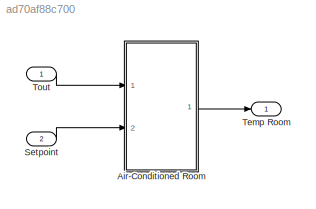
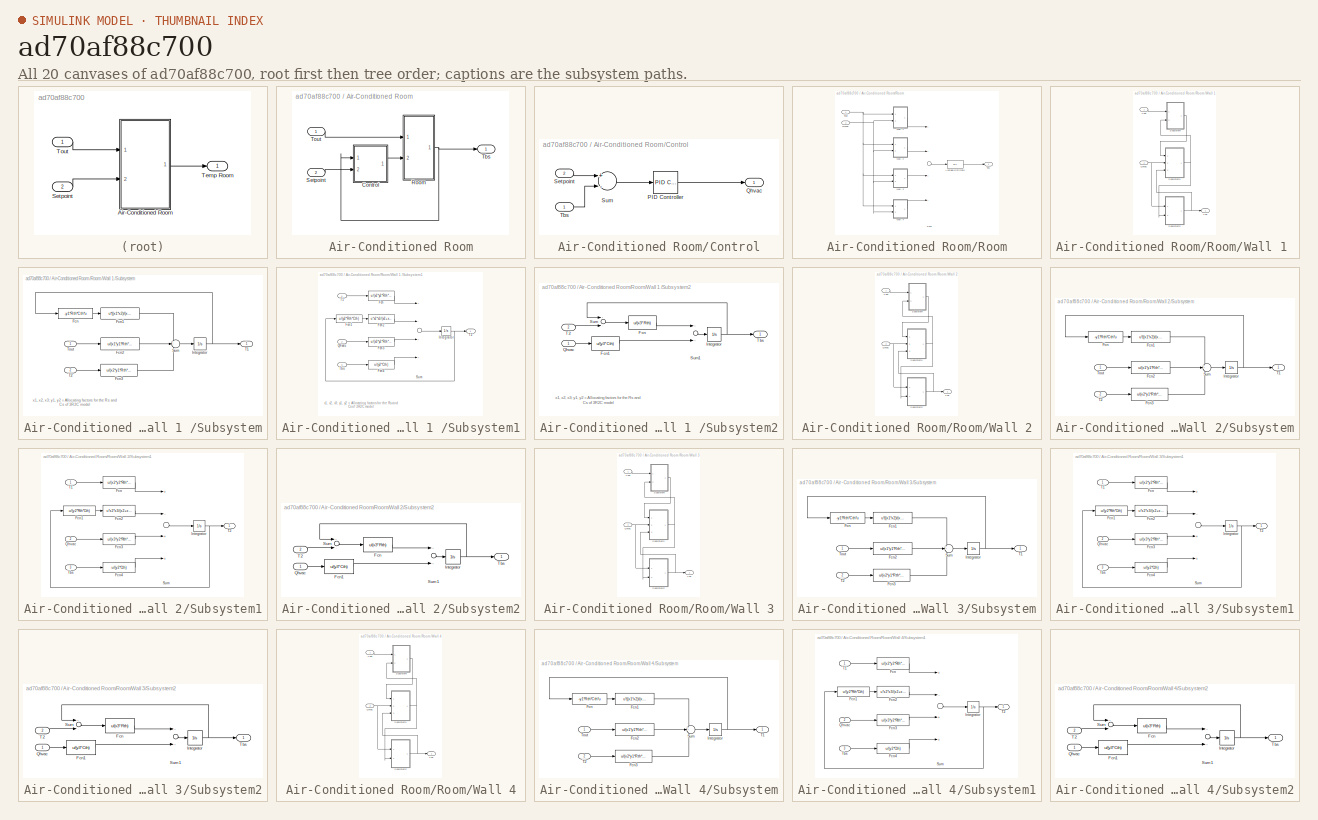
[diagram: thumbnail index - all 20 canvases of the model, root first then tree order]
MODEL slx_ad70af88c700
KIND model
CONFIG AbsTol = auto
CONFIG FixedStep = auto
CONFIG MaxStep = auto
CONFIG MinStep = auto
CONFIG RelTol = 1e-3
CONFIG SampleTimeConstraint = Unconstrained
CONFIG Solver = VariableStepAuto
CONFIG SolverMode = Auto
CONFIG SolverName = VariableStepAuto
CONFIG StartTime = 0.0
CONFIG StopTime = 10.0
BLOCK [SubSystem] Air-Conditioned Room
  Ports = [2, 1]
  RequestExecContextInheritance = off
  Variant = off
BLOCK [SubSystem] Air-Conditioned Room/Control
  Ports = [2, 1]
  RequestExecContextInheritance = off
  Variant = off
BLOCK [Reference] Air-Conditioned Room/Control/PID Controller  REF=simulink/Continuous/PID Controller
  Ports = [1, 1]
  SourceBlock = simulink/Continuous/PID Controller
  SourceType = PID 1dof
BLOCK [Outport] Air-Conditioned Room/Control/Qhvac 
  IconDisplay = Port number
BLOCK [Inport] Air-Conditioned Room/Control/Setpoint
  IconDisplay = Port number
  Port = 2
BLOCK [Sum] Air-Conditioned Room/Control/Sum
  InputSameDT = off
  Inputs = +-
  OutDataTypeStr = Inherit: Inherit via internal rule
  Ports = [2, 1]
  SaturateOnIntegerOverflow = off
BLOCK [Inport] Air-Conditioned Room/Control/Tbs 
  IconDisplay = Port number
BLOCK [SubSystem] Air-Conditioned Room/Room
  Ports = [2, 1]
  RequestExecContextInheritance = off
  Variant = off
BLOCK [Fcn] Air-Conditioned Room/Room/Average Estimate
  Expr = u/4
BLOCK [Inport] Air-Conditioned Room/Room/Qhvac
  IconDisplay = Port number
  Port = 2
BLOCK [Sum] Air-Conditioned Room/Room/Sum
  InputSameDT = off
  Inputs = ++++
  OutDataTypeStr = Inherit: Inherit via internal rule
  Ports = [4, 1]
  SaturateOnIntegerOverflow = off
BLOCK [Outport] Air-Conditioned Room/Room/Tbs
  IconDisplay = Port number
BLOCK [Inport] Air-Conditioned Room/Room/Tout
  IconDisplay = Port number
BLOCK [SubSystem] Air-Conditioned Room/Room/Wall 1 
  Ports = [2, 1]
  RequestExecContextInheritance = off
  Variant = off
BLOCK [Inport] Air-Conditioned Room/Room/Wall 1 /Qhvac
  IconDisplay = Port number
  Port = 2
BLOCK [SubSystem] Air-Conditioned Room/Room/Wall 1 /Subsystem
  Ports = [2, 1]
  RequestExecContextInheritance = off
  Variant = off
BLOCK [Fcn] Air-Conditioned Room/Room/Wall 1 /Subsystem/Fcn
  Expr = -y1*Rth*Cth*u
BLOCK [Fcn] Air-Conditioned Room/Room/Wall 1 /Subsystem/Fcn1
  Expr = u*((x1*x2)/(x1+x2))
BLOCK [Fcn] Air-Conditioned Room/Room/Wall 1 /Subsystem/Fcn2
  Expr = u/(x1*y1*Rth*Cth)
BLOCK [Fcn] Air-Conditioned Room/Room/Wall 1 /Subsystem/Fcn3
  Expr = u/(x2*y1*Rth*Cth)
BLOCK [Integrator] Air-Conditioned Room/Room/Wall 1 /Subsystem/Integrator
  Ports = [1, 1]
BLOCK [Sum] Air-Conditioned Room/Room/Wall 1 /Subsystem/Sum
  IconShape = round
  InputSameDT = off
  Inputs = 3
  OutDataTypeStr = Inherit: Inherit via internal rule
  Ports = [3, 1]
  SaturateOnIntegerOverflow = off
BLOCK [Outport] Air-Conditioned Room/Room/Wall 1 /Subsystem/T1
  IconDisplay = Port number
BLOCK [Inport] Air-Conditioned Room/Room/Wall 1 /Subsystem/T2
  IconDisplay = Port number
  Port = 2
BLOCK [Inport] Air-Conditioned Room/Room/Wall 1 /Subsystem/Tout
  IconDisplay = Port number
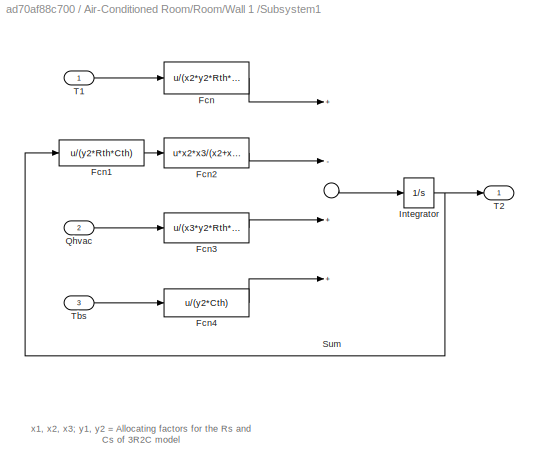
BLOCK [SubSystem] Air-Conditioned Room/Room/Wall 1 /Subsystem1
  Ports = [3, 1]
  RequestExecContextInheritance = off
  Variant = off
BLOCK [Fcn] Air-Conditioned Room/Room/Wall 1 /Subsystem1/Fcn
  Expr = u/(x2*y2*Rth*Cth)
BLOCK [Fcn] Air-Conditioned Room/Room/Wall 1 /Subsystem1/Fcn1
  Expr = u/(y2*Rth*Cth)
BLOCK [Fcn] Air-Conditioned Room/Room/Wall 1 /Subsystem1/Fcn2
  Expr = u*x2*x3/(x2+x3)
BLOCK [Fcn] Air-Conditioned Room/Room/Wall 1 /Subsystem1/Fcn3
  Expr = u/(x3*y2*Rth*Cth)
BLOCK [Fcn] Air-Conditioned Room/Room/Wall 1 /Subsystem1/Fcn4
  Expr = u/(y2*Cth)
BLOCK [Integrator] Air-Conditioned Room/Room/Wall 1 /Subsystem1/Integrator
  Ports = [1, 1]
BLOCK [Inport] Air-Conditioned Room/Room/Wall 1 /Subsystem1/Qhvac
  IconDisplay = Port number
  Port = 2
BLOCK [Sum] Air-Conditioned Room/Room/Wall 1 /Subsystem1/Sum
  InputSameDT = off
  Inputs = +-++
  OutDataTypeStr = Inherit: Inherit via internal rule
  Ports = [4, 1]
  RndMeth = Round
  SaturateOnIntegerOverflow = off
BLOCK [Inport] Air-Conditioned Room/Room/Wall 1 /Subsystem1/T1 
  IconDisplay = Port number
BLOCK [Outport] Air-Conditioned Room/Room/Wall 1 /Subsystem1/T2 
  IconDisplay = Port number
BLOCK [Inport] Air-Conditioned Room/Room/Wall 1 /Subsystem1/Tbs
  IconDisplay = Port number
  Port = 3
BLOCK [SubSystem] Air-Conditioned Room/Room/Wall 1 /Subsystem2
  Ports = [2, 1]
  RequestExecContextInheritance = off
  Variant = off
BLOCK [Fcn] Air-Conditioned Room/Room/Wall 1 /Subsystem2/Fcn
  Expr = u/(x3*Rth)
BLOCK [Fcn] Air-Conditioned Room/Room/Wall 1 /Subsystem2/Fcn1
  Expr = u/(y3*Cth)
BLOCK [Integrator] Air-Conditioned Room/Room/Wall 1 /Subsystem2/Integrator
  Ports = [1, 1]
BLOCK [Inport] Air-Conditioned Room/Room/Wall 1 /Subsystem2/Qhvac 
  IconDisplay = Port number
BLOCK [Sum] Air-Conditioned Room/Room/Wall 1 /Subsystem2/Sum
  InputSameDT = off
  Inputs = +-
  OutDataTypeStr = Inherit: Inherit via internal rule
  Ports = [2, 1]
  SaturateOnIntegerOverflow = off
BLOCK [Sum] Air-Conditioned Room/Room/Wall 1 /Subsystem2/Sum1
  InputSameDT = off
  OutDataTypeStr = Inherit: Inherit via internal rule
  Ports = [2, 1]
  SaturateOnIntegerOverflow = off
BLOCK [Inport] Air-Conditioned Room/Room/Wall 1 /Subsystem2/T2 
  IconDisplay = Port number
  Port = 2
BLOCK [Outport] Air-Conditioned Room/Room/Wall 1 /Subsystem2/Tbs 
  IconDisplay = Port number
BLOCK [Outport] Air-Conditioned Room/Room/Wall 1 /Tbs 
  IconDisplay = Port number
BLOCK [Inport] Air-Conditioned Room/Room/Wall 1 /Tout
  IconDisplay = Port number
BLOCK [SubSystem] Air-Conditioned Room/Room/Wall 2
  Ports = [2, 1]
  RequestExecContextInheritance = off
  Variant = off
BLOCK [Inport] Air-Conditioned Room/Room/Wall 2/Qhvac
  IconDisplay = Port number
  Port = 2
BLOCK [SubSystem] Air-Conditioned Room/Room/Wall 2/Subsystem
  Ports = [2, 1]
  RequestExecContextInheritance = off
  Variant = off
BLOCK [Fcn] Air-Conditioned Room/Room/Wall 2/Subsystem/Fcn
  Expr = -y1*Rth*Cth*u
BLOCK [Fcn] Air-Conditioned Room/Room/Wall 2/Subsystem/Fcn1
  Expr = u*((x1*x2)/(x1+x2))
BLOCK [Fcn] Air-Conditioned Room/Room/Wall 2/Subsystem/Fcn2
  Expr = u/(x1*y1*Rth*Cth)
BLOCK [Fcn] Air-Conditioned Room/Room/Wall 2/Subsystem/Fcn3
  Expr = u/(x2*y1*Rth*Cth)
BLOCK [Integrator] Air-Conditioned Room/Room/Wall 2/Subsystem/Integrator
  Ports = [1, 1]
BLOCK [Sum] Air-Conditioned Room/Room/Wall 2/Subsystem/Sum
  IconShape = round
  InputSameDT = off
  Inputs = 3
  OutDataTypeStr = Inherit: Inherit via internal rule
  Ports = [3, 1]
  SaturateOnIntegerOverflow = off
BLOCK [Outport] Air-Conditioned Room/Room/Wall 2/Subsystem/T1
  IconDisplay = Port number
BLOCK [Inport] Air-Conditioned Room/Room/Wall 2/Subsystem/T2
  IconDisplay = Port number
  Port = 2
BLOCK [Inport] Air-Conditioned Room/Room/Wall 2/Subsystem/Tout
  IconDisplay = Port number
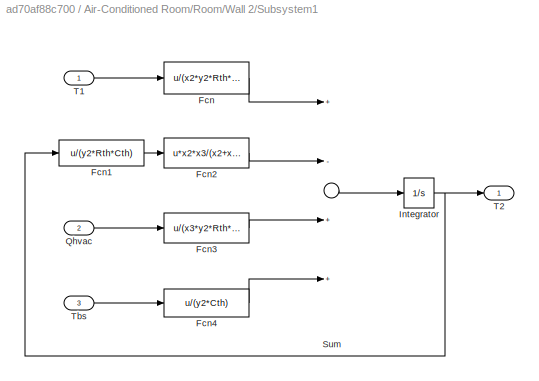
BLOCK [SubSystem] Air-Conditioned Room/Room/Wall 2/Subsystem1
  Ports = [3, 1]
  RequestExecContextInheritance = off
  Variant = off
BLOCK [Fcn] Air-Conditioned Room/Room/Wall 2/Subsystem1/Fcn
  Expr = u/(x2*y2*Rth*Cth)
BLOCK [Fcn] Air-Conditioned Room/Room/Wall 2/Subsystem1/Fcn1
  Expr = u/(y2*Rth*Cth)
BLOCK [Fcn] Air-Conditioned Room/Room/Wall 2/Subsystem1/Fcn2
  Expr = u*x2*x3/(x2+x3)
BLOCK [Fcn] Air-Conditioned Room/Room/Wall 2/Subsystem1/Fcn3
  Expr = u/(x3*y2*Rth*Cth)
BLOCK [Fcn] Air-Conditioned Room/Room/Wall 2/Subsystem1/Fcn4
  Expr = u/(y2*Cth)
BLOCK [Integrator] Air-Conditioned Room/Room/Wall 2/Subsystem1/Integrator
  Ports = [1, 1]
BLOCK [Inport] Air-Conditioned Room/Room/Wall 2/Subsystem1/Qhvac
  IconDisplay = Port number
  Port = 2
BLOCK [Sum] Air-Conditioned Room/Room/Wall 2/Subsystem1/Sum
  InputSameDT = off
  Inputs = +-++
  OutDataTypeStr = Inherit: Inherit via internal rule
  Ports = [4, 1]
  RndMeth = Round
  SaturateOnIntegerOverflow = off
BLOCK [Inport] Air-Conditioned Room/Room/Wall 2/Subsystem1/T1 
  IconDisplay = Port number
BLOCK [Outport] Air-Conditioned Room/Room/Wall 2/Subsystem1/T2 
  IconDisplay = Port number
BLOCK [Inport] Air-Conditioned Room/Room/Wall 2/Subsystem1/Tbs
  IconDisplay = Port number
  Port = 3
BLOCK [SubSystem] Air-Conditioned Room/Room/Wall 2/Subsystem2
  Ports = [2, 1]
  RequestExecContextInheritance = off
  Variant = off
BLOCK [Fcn] Air-Conditioned Room/Room/Wall 2/Subsystem2/Fcn
  Expr = u/(x3*Rth)
BLOCK [Fcn] Air-Conditioned Room/Room/Wall 2/Subsystem2/Fcn1
  Expr = u/(y3*Cth)
BLOCK [Integrator] Air-Conditioned Room/Room/Wall 2/Subsystem2/Integrator
  Ports = [1, 1]
BLOCK [Inport] Air-Conditioned Room/Room/Wall 2/Subsystem2/Qhvac 
  IconDisplay = Port number
BLOCK [Sum] Air-Conditioned Room/Room/Wall 2/Subsystem2/Sum
  InputSameDT = off
  Inputs = +-
  OutDataTypeStr = Inherit: Inherit via internal rule
  Ports = [2, 1]
  SaturateOnIntegerOverflow = off
BLOCK [Sum] Air-Conditioned Room/Room/Wall 2/Subsystem2/Sum1
  InputSameDT = off
  OutDataTypeStr = Inherit: Inherit via internal rule
  Ports = [2, 1]
  SaturateOnIntegerOverflow = off
BLOCK [Inport] Air-Conditioned Room/Room/Wall 2/Subsystem2/T2 
  IconDisplay = Port number
  Port = 2
BLOCK [Outport] Air-Conditioned Room/Room/Wall 2/Subsystem2/Tbs 
  IconDisplay = Port number
BLOCK [Outport] Air-Conditioned Room/Room/Wall 2/Tbs 
  IconDisplay = Port number
BLOCK [Inport] Air-Conditioned Room/Room/Wall 2/Tout
  IconDisplay = Port number
BLOCK [SubSystem] Air-Conditioned Room/Room/Wall 3
  Ports = [2, 1]
  RequestExecContextInheritance = off
  Variant = off
BLOCK [Inport] Air-Conditioned Room/Room/Wall 3/Qhvac
  IconDisplay = Port number
  Port = 2
BLOCK [SubSystem] Air-Conditioned Room/Room/Wall 3/Subsystem
  Ports = [2, 1]
  RequestExecContextInheritance = off
  Variant = off
BLOCK [Fcn] Air-Conditioned Room/Room/Wall 3/Subsystem/Fcn
  Expr = -y1*Rth*Cth*u
BLOCK [Fcn] Air-Conditioned Room/Room/Wall 3/Subsystem/Fcn1
  Expr = u*((x1*x2)/(x1+x2))
BLOCK [Fcn] Air-Conditioned Room/Room/Wall 3/Subsystem/Fcn2
  Expr = u/(x1*y1*Rth*Cth)
BLOCK [Fcn] Air-Conditioned Room/Room/Wall 3/Subsystem/Fcn3
  Expr = u/(x2*y1*Rth*Cth)
BLOCK [Integrator] Air-Conditioned Room/Room/Wall 3/Subsystem/Integrator
  Ports = [1, 1]
BLOCK [Sum] Air-Conditioned Room/Room/Wall 3/Subsystem/Sum
  IconShape = round
  InputSameDT = off
  Inputs = 3
  OutDataTypeStr = Inherit: Inherit via internal rule
  Ports = [3, 1]
  SaturateOnIntegerOverflow = off
BLOCK [Outport] Air-Conditioned Room/Room/Wall 3/Subsystem/T1
  IconDisplay = Port number
BLOCK [Inport] Air-Conditioned Room/Room/Wall 3/Subsystem/T2
  IconDisplay = Port number
  Port = 2
BLOCK [Inport] Air-Conditioned Room/Room/Wall 3/Subsystem/Tout
  IconDisplay = Port number
BLOCK [SubSystem] Air-Conditioned Room/Room/Wall 3/Subsystem1
  Ports = [3, 1]
  RequestExecContextInheritance = off
  Variant = off
BLOCK [Fcn] Air-Conditioned Room/Room/Wall 3/Subsystem1/Fcn
  Expr = u/(x2*y2*Rth*Cth)
BLOCK [Fcn] Air-Conditioned Room/Room/Wall 3/Subsystem1/Fcn1
  Expr = u/(y2*Rth*Cth)
BLOCK [Fcn] Air-Conditioned Room/Room/Wall 3/Subsystem1/Fcn2
  Expr = u*x2*x3/(x2+x3)
BLOCK [Fcn] Air-Conditioned Room/Room/Wall 3/Subsystem1/Fcn3
  Expr = u/(x3*y2*Rth*Cth)
BLOCK [Fcn] Air-Conditioned Room/Room/Wall 3/Subsystem1/Fcn4
  Expr = u/(y2*Cth)
BLOCK [Integrator] Air-Conditioned Room/Room/Wall 3/Subsystem1/Integrator
  Ports = [1, 1]
BLOCK [Inport] Air-Conditioned Room/Room/Wall 3/Subsystem1/Qhvac
  IconDisplay = Port number
  Port = 2
BLOCK [Sum] Air-Conditioned Room/Room/Wall 3/Subsystem1/Sum
  InputSameDT = off
  Inputs = +-++
  OutDataTypeStr = Inherit: Inherit via internal rule
  Ports = [4, 1]
  RndMeth = Round
  SaturateOnIntegerOverflow = off
BLOCK [Inport] Air-Conditioned Room/Room/Wall 3/Subsystem1/T1 
  IconDisplay = Port number
BLOCK [Outport] Air-Conditioned Room/Room/Wall 3/Subsystem1/T2 
  IconDisplay = Port number
BLOCK [Inport] Air-Conditioned Room/Room/Wall 3/Subsystem1/Tbs
  IconDisplay = Port number
  Port = 3
BLOCK [SubSystem] Air-Conditioned Room/Room/Wall 3/Subsystem2
  Ports = [2, 1]
  RequestExecContextInheritance = off
  Variant = off
BLOCK [Fcn] Air-Conditioned Room/Room/Wall 3/Subsystem2/Fcn
  Expr = u/(x3*Rth)
BLOCK [Fcn] Air-Conditioned Room/Room/Wall 3/Subsystem2/Fcn1
  Expr = u/(y3*Cth)
BLOCK [Integrator] Air-Conditioned Room/Room/Wall 3/Subsystem2/Integrator
  Ports = [1, 1]
BLOCK [Inport] Air-Conditioned Room/Room/Wall 3/Subsystem2/Qhvac 
  IconDisplay = Port number
BLOCK [Sum] Air-Conditioned Room/Room/Wall 3/Subsystem2/Sum
  InputSameDT = off
  Inputs = +-
  OutDataTypeStr = Inherit: Inherit via internal rule
  Ports = [2, 1]
  SaturateOnIntegerOverflow = off
BLOCK [Sum] Air-Conditioned Room/Room/Wall 3/Subsystem2/Sum1
  InputSameDT = off
  OutDataTypeStr = Inherit: Inherit via internal rule
  Ports = [2, 1]
  SaturateOnIntegerOverflow = off
BLOCK [Inport] Air-Conditioned Room/Room/Wall 3/Subsystem2/T2 
  IconDisplay = Port number
  Port = 2
BLOCK [Outport] Air-Conditioned Room/Room/Wall 3/Subsystem2/Tbs 
  IconDisplay = Port number
BLOCK [Outport] Air-Conditioned Room/Room/Wall 3/Tbs 
  IconDisplay = Port number
BLOCK [Inport] Air-Conditioned Room/Room/Wall 3/Tout
  IconDisplay = Port number
BLOCK [SubSystem] Air-Conditioned Room/Room/Wall 4
  Ports = [2, 1]
  RequestExecContextInheritance = off
  Variant = off
BLOCK [Inport] Air-Conditioned Room/Room/Wall 4/Qhvac
  IconDisplay = Port number
  Port = 2
BLOCK [SubSystem] Air-Conditioned Room/Room/Wall 4/Subsystem
  Ports = [2, 1]
  RequestExecContextInheritance = off
  Variant = off
BLOCK [Fcn] Air-Conditioned Room/Room/Wall 4/Subsystem/Fcn
  Expr = -y1*Rth*Cth*u
BLOCK [Fcn] Air-Conditioned Room/Room/Wall 4/Subsystem/Fcn1
  Expr = u*((x1*x2)/(x1+x2))
BLOCK [Fcn] Air-Conditioned Room/Room/Wall 4/Subsystem/Fcn2
  Expr = u/(x1*y1*Rth*Cth)
BLOCK [Fcn] Air-Conditioned Room/Room/Wall 4/Subsystem/Fcn3
  Expr = u/(x2*y1*Rth*Cth)
BLOCK [Integrator] Air-Conditioned Room/Room/Wall 4/Subsystem/Integrator
  Ports = [1, 1]
BLOCK [Sum] Air-Conditioned Room/Room/Wall 4/Subsystem/Sum
  IconShape = round
  InputSameDT = off
  Inputs = 3
  OutDataTypeStr = Inherit: Inherit via internal rule
  Ports = [3, 1]
  SaturateOnIntegerOverflow = off
BLOCK [Outport] Air-Conditioned Room/Room/Wall 4/Subsystem/T1
  IconDisplay = Port number
BLOCK [Inport] Air-Conditioned Room/Room/Wall 4/Subsystem/T2
  IconDisplay = Port number
  Port = 2
BLOCK [Inport] Air-Conditioned Room/Room/Wall 4/Subsystem/Tout
  IconDisplay = Port number
BLOCK [SubSystem] Air-Conditioned Room/Room/Wall 4/Subsystem1
  Ports = [3, 1]
  RequestExecContextInheritance = off
  Variant = off
BLOCK [Fcn] Air-Conditioned Room/Room/Wall 4/Subsystem1/Fcn
  Expr = u/(x2*y2*Rth*Cth)
BLOCK [Fcn] Air-Conditioned Room/Room/Wall 4/Subsystem1/Fcn1
  Expr = u/(y2*Rth*Cth)
BLOCK [Fcn] Air-Conditioned Room/Room/Wall 4/Subsystem1/Fcn2
  Expr = u*x2*x3/(x2+x3)
BLOCK [Fcn] Air-Conditioned Room/Room/Wall 4/Subsystem1/Fcn3
  Expr = u/(x3*y2*Rth*Cth)
BLOCK [Fcn] Air-Conditioned Room/Room/Wall 4/Subsystem1/Fcn4
  Expr = u/(y2*Cth)
BLOCK [Integrator] Air-Conditioned Room/Room/Wall 4/Subsystem1/Integrator
  Ports = [1, 1]
BLOCK [Inport] Air-Conditioned Room/Room/Wall 4/Subsystem1/Qhvac
  IconDisplay = Port number
  Port = 2
BLOCK [Sum] Air-Conditioned Room/Room/Wall 4/Subsystem1/Sum
  InputSameDT = off
  Inputs = +-++
  OutDataTypeStr = Inherit: Inherit via internal rule
  Ports = [4, 1]
  RndMeth = Round
  SaturateOnIntegerOverflow = off
BLOCK [Inport] Air-Conditioned Room/Room/Wall 4/Subsystem1/T1 
  IconDisplay = Port number
BLOCK [Outport] Air-Conditioned Room/Room/Wall 4/Subsystem1/T2 
  IconDisplay = Port number
BLOCK [Inport] Air-Conditioned Room/Room/Wall 4/Subsystem1/Tbs
  IconDisplay = Port number
  Port = 3
BLOCK [SubSystem] Air-Conditioned Room/Room/Wall 4/Subsystem2
  Ports = [2, 1]
  RequestExecContextInheritance = off
  Variant = off
BLOCK [Fcn] Air-Conditioned Room/Room/Wall 4/Subsystem2/Fcn
  Expr = u/(x3*Rth)
BLOCK [Fcn] Air-Conditioned Room/Room/Wall 4/Subsystem2/Fcn1
  Expr = u/(y3*Cth)
BLOCK [Integrator] Air-Conditioned Room/Room/Wall 4/Subsystem2/Integrator
  Ports = [1, 1]
BLOCK [Inport] Air-Conditioned Room/Room/Wall 4/Subsystem2/Qhvac 
  IconDisplay = Port number
BLOCK [Sum] Air-Conditioned Room/Room/Wall 4/Subsystem2/Sum
  InputSameDT = off
  Inputs = +-
  OutDataTypeStr = Inherit: Inherit via internal rule
  Ports = [2, 1]
  SaturateOnIntegerOverflow = off
BLOCK [Sum] Air-Conditioned Room/Room/Wall 4/Subsystem2/Sum1
  InputSameDT = off
  OutDataTypeStr = Inherit: Inherit via internal rule
  Ports = [2, 1]
  SaturateOnIntegerOverflow = off
BLOCK [Inport] Air-Conditioned Room/Room/Wall 4/Subsystem2/T2 
  IconDisplay = Port number
  Port = 2
BLOCK [Outport] Air-Conditioned Room/Room/Wall 4/Subsystem2/Tbs 
  IconDisplay = Port number
BLOCK [Outport] Air-Conditioned Room/Room/Wall 4/Tbs 
  IconDisplay = Port number
BLOCK [Inport] Air-Conditioned Room/Room/Wall 4/Tout
  IconDisplay = Port number
BLOCK [Inport] Air-Conditioned Room/Setpoint
  IconDisplay = Port number
  Port = 2
BLOCK [Outport] Air-Conditioned Room/Tbs
  IconDisplay = Port number
BLOCK [Inport] Air-Conditioned Room/Tout
  IconDisplay = Port number
BLOCK [Inport] Setpoint
  IconDisplay = Port number
  Port = 2
BLOCK [Outport] Temp Room
  IconDisplay = Port number
BLOCK [Inport] Tout
  IconDisplay = Port number
ANNOTATION Air-Conditioned Room/Room/Wall 1 /Subsystem: x1, x2, x3; y1, y2 = Allocating factors for the Rs and Cs of 3R2C model
ANNOTATION Air-Conditioned Room/Room/Wall 1 /Subsystem1: x1, x2, x3; y1, y2 = Allocating factors for the Rs and Cs of 3R2C model
ANNOTATION Air-Conditioned Room/Room/Wall 1 /Subsystem2: x1, x2, x3; y1, y2 = Allocating factors for the Rs and Cs of 3R2C model
LINE Air-Conditioned Room/Control/PID Controller:1 -> Air-Conditioned Room/Control/Qhvac :1
LINE Air-Conditioned Room/Control/Setpoint:1 -> Air-Conditioned Room/Control/Sum:1
LINE Air-Conditioned Room/Control/Sum:1 -> Air-Conditioned Room/Control/PID Controller:1
LINE Air-Conditioned Room/Control/Tbs :1 -> Air-Conditioned Room/Control/Sum:2
LINE Air-Conditioned Room/Control:1 -> Air-Conditioned Room/Room:2
LINE Air-Conditioned Room/Room/Average Estimate:1 -> Air-Conditioned Room/Room/Tbs:1
NET Air-Conditioned Room/Room/Qhvac:1 -> Air-Conditioned Room/Room/Wall 1 :2, Air-Conditioned Room/Room/Wall 2:2, Air-Conditioned Room/Room/Wall 3:2, Air-Conditioned Room/Room/Wall 4:2
LINE Air-Conditioned Room/Room/Sum:1 -> Air-Conditioned Room/Room/Average Estimate:1
NET Air-Conditioned Room/Room/Tout:1 -> Air-Conditioned Room/Room/Wall 1 :1, Air-Conditioned Room/Room/Wall 2:1, Air-Conditioned Room/Room/Wall 3:1, Air-Conditioned Room/Room/Wall 4:1
NET Air-Conditioned Room/Room/Wall 1 /Qhvac:1 -> Air-Conditioned Room/Room/Wall 1 /Subsystem1:2, Air-Conditioned Room/Room/Wall 1 /Subsystem2:1
LINE Air-Conditioned Room/Room/Wall 1 /Subsystem/Fcn1:1 -> Air-Conditioned Room/Room/Wall 1 /Subsystem/Sum:1
LINE Air-Conditioned Room/Room/Wall 1 /Subsystem/Fcn2:1 -> Air-Conditioned Room/Room/Wall 1 /Subsystem/Sum:2
LINE Air-Conditioned Room/Room/Wall 1 /Subsystem/Fcn3:1 -> Air-Conditioned Room/Room/Wall 1 /Subsystem/Sum:3
LINE Air-Conditioned Room/Room/Wall 1 /Subsystem/Fcn:1 -> Air-Conditioned Room/Room/Wall 1 /Subsystem/Fcn1:1
NET Air-Conditioned Room/Room/Wall 1 /Subsystem/Integrator:1 -> Air-Conditioned Room/Room/Wall 1 /Subsystem/Fcn:1, Air-Conditioned Room/Room/Wall 1 /Subsystem/T1:1
LINE Air-Conditioned Room/Room/Wall 1 /Subsystem/Sum:1 -> Air-Conditioned Room/Room/Wall 1 /Subsystem/Integrator:1
LINE Air-Conditioned Room/Room/Wall 1 /Subsystem/T2:1 -> Air-Conditioned Room/Room/Wall 1 /Subsystem/Fcn3:1
LINE Air-Conditioned Room/Room/Wall 1 /Subsystem/Tout:1 -> Air-Conditioned Room/Room/Wall 1 /Subsystem/Fcn2:1
LINE Air-Conditioned Room/Room/Wall 1 /Subsystem1/Fcn1:1 -> Air-Conditioned Room/Room/Wall 1 /Subsystem1/Fcn2:1
LINE Air-Conditioned Room/Room/Wall 1 /Subsystem1/Fcn2:1 -> Air-Conditioned Room/Room/Wall 1 /Subsystem1/Sum:2
LINE Air-Conditioned Room/Room/Wall 1 /Subsystem1/Fcn3:1 -> Air-Conditioned Room/Room/Wall 1 /Subsystem1/Sum:3
LINE Air-Conditioned Room/Room/Wall 1 /Subsystem1/Fcn4:1 -> Air-Conditioned Room/Room/Wall 1 /Subsystem1/Sum:4
LINE Air-Conditioned Room/Room/Wall 1 /Subsystem1/Fcn:1 -> Air-Conditioned Room/Room/Wall 1 /Subsystem1/Sum:1
NET Air-Conditioned Room/Room/Wall 1 /Subsystem1/Integrator:1 -> Air-Conditioned Room/Room/Wall 1 /Subsystem1/Fcn1:1, Air-Conditioned Room/Room/Wall 1 /Subsystem1/T2 :1
LINE Air-Conditioned Room/Room/Wall 1 /Subsystem1/Qhvac:1 -> Air-Conditioned Room/Room/Wall 1 /Subsystem1/Fcn3:1
LINE Air-Conditioned Room/Room/Wall 1 /Subsystem1/Sum:1 -> Air-Conditioned Room/Room/Wall 1 /Subsystem1/Integrator:1
LINE Air-Conditioned Room/Room/Wall 1 /Subsystem1/T1 :1 -> Air-Conditioned Room/Room/Wall 1 /Subsystem1/Fcn:1
LINE Air-Conditioned Room/Room/Wall 1 /Subsystem1/Tbs:1 -> Air-Conditioned Room/Room/Wall 1 /Subsystem1/Fcn4:1
NET Air-Conditioned Room/Room/Wall 1 /Subsystem1:1 -> Air-Conditioned Room/Room/Wall 1 /Subsystem2:2, Air-Conditioned Room/Room/Wall 1 /Subsystem:2
LINE Air-Conditioned Room/Room/Wall 1 /Subsystem2/Fcn1:1 -> Air-Conditioned Room/Room/Wall 1 /Subsystem2/Sum1:2
LINE Air-Conditioned Room/Room/Wall 1 /Subsystem2/Fcn:1 -> Air-Conditioned Room/Room/Wall 1 /Subsystem2/Sum1:1
NET Air-Conditioned Room/Room/Wall 1 /Subsystem2/Integrator:1 -> Air-Conditioned Room/Room/Wall 1 /Subsystem2/Sum:1, Air-Conditioned Room/Room/Wall 1 /Subsystem2/Tbs :1
LINE Air-Conditioned Room/Room/Wall 1 /Subsystem2/Qhvac :1 -> Air-Conditioned Room/Room/Wall 1 /Subsystem2/Fcn1:1
LINE Air-Conditioned Room/Room/Wall 1 /Subsystem2/Sum1:1 -> Air-Conditioned Room/Room/Wall 1 /Subsystem2/Integrator:1
LINE Air-Conditioned Room/Room/Wall 1 /Subsystem2/Sum:1 -> Air-Conditioned Room/Room/Wall 1 /Subsystem2/Fcn:1
LINE Air-Conditioned Room/Room/Wall 1 /Subsystem2/T2 :1 -> Air-Conditioned Room/Room/Wall 1 /Subsystem2/Sum:2
NET Air-Conditioned Room/Room/Wall 1 /Subsystem2:1 -> Air-Conditioned Room/Room/Wall 1 /Subsystem1:3, Air-Conditioned Room/Room/Wall 1 /Tbs :1
LINE Air-Conditioned Room/Room/Wall 1 /Subsystem:1 -> Air-Conditioned Room/Room/Wall 1 /Subsystem1:1
LINE Air-Conditioned Room/Room/Wall 1 /Tout:1 -> Air-Conditioned Room/Room/Wall 1 /Subsystem:1
LINE Air-Conditioned Room/Room/Wall 1 :1 -> Air-Conditioned Room/Room/Sum:1
NET Air-Conditioned Room/Room/Wall 2/Qhvac:1 -> Air-Conditioned Room/Room/Wall 2/Subsystem1:2, Air-Conditioned Room/Room/Wall 2/Subsystem2:1
LINE Air-Conditioned Room/Room/Wall 2/Subsystem/Fcn1:1 -> Air-Conditioned Room/Room/Wall 2/Subsystem/Sum:1
LINE Air-Conditioned Room/Room/Wall 2/Subsystem/Fcn2:1 -> Air-Conditioned Room/Room/Wall 2/Subsystem/Sum:2
LINE Air-Conditioned Room/Room/Wall 2/Subsystem/Fcn3:1 -> Air-Conditioned Room/Room/Wall 2/Subsystem/Sum:3
LINE Air-Conditioned Room/Room/Wall 2/Subsystem/Fcn:1 -> Air-Conditioned Room/Room/Wall 2/Subsystem/Fcn1:1
NET Air-Conditioned Room/Room/Wall 2/Subsystem/Integrator:1 -> Air-Conditioned Room/Room/Wall 2/Subsystem/Fcn:1, Air-Conditioned Room/Room/Wall 2/Subsystem/T1:1
LINE Air-Conditioned Room/Room/Wall 2/Subsystem/Sum:1 -> Air-Conditioned Room/Room/Wall 2/Subsystem/Integrator:1
LINE Air-Conditioned Room/Room/Wall 2/Subsystem/T2:1 -> Air-Conditioned Room/Room/Wall 2/Subsystem/Fcn3:1
LINE Air-Conditioned Room/Room/Wall 2/Subsystem/Tout:1 -> Air-Conditioned Room/Room/Wall 2/Subsystem/Fcn2:1
LINE Air-Conditioned Room/Room/Wall 2/Subsystem1/Fcn1:1 -> Air-Conditioned Room/Room/Wall 2/Subsystem1/Fcn2:1
LINE Air-Conditioned Room/Room/Wall 2/Subsystem1/Fcn2:1 -> Air-Conditioned Room/Room/Wall 2/Subsystem1/Sum:2
LINE Air-Conditioned Room/Room/Wall 2/Subsystem1/Fcn3:1 -> Air-Conditioned Room/Room/Wall 2/Subsystem1/Sum:3
LINE Air-Conditioned Room/Room/Wall 2/Subsystem1/Fcn4:1 -> Air-Conditioned Room/Room/Wall 2/Subsystem1/Sum:4
LINE Air-Conditioned Room/Room/Wall 2/Subsystem1/Fcn:1 -> Air-Conditioned Room/Room/Wall 2/Subsystem1/Sum:1
NET Air-Conditioned Room/Room/Wall 2/Subsystem1/Integrator:1 -> Air-Conditioned Room/Room/Wall 2/Subsystem1/Fcn1:1, Air-Conditioned Room/Room/Wall 2/Subsystem1/T2 :1
LINE Air-Conditioned Room/Room/Wall 2/Subsystem1/Qhvac:1 -> Air-Conditioned Room/Room/Wall 2/Subsystem1/Fcn3:1
LINE Air-Conditioned Room/Room/Wall 2/Subsystem1/Sum:1 -> Air-Conditioned Room/Room/Wall 2/Subsystem1/Integrator:1
LINE Air-Conditioned Room/Room/Wall 2/Subsystem1/T1 :1 -> Air-Conditioned Room/Room/Wall 2/Subsystem1/Fcn:1
LINE Air-Conditioned Room/Room/Wall 2/Subsystem1/Tbs:1 -> Air-Conditioned Room/Room/Wall 2/Subsystem1/Fcn4:1
NET Air-Conditioned Room/Room/Wall 2/Subsystem1:1 -> Air-Conditioned Room/Room/Wall 2/Subsystem2:2, Air-Conditioned Room/Room/Wall 2/Subsystem:2
LINE Air-Conditioned Room/Room/Wall 2/Subsystem2/Fcn1:1 -> Air-Conditioned Room/Room/Wall 2/Subsystem2/Sum1:2
LINE Air-Conditioned Room/Room/Wall 2/Subsystem2/Fcn:1 -> Air-Conditioned Room/Room/Wall 2/Subsystem2/Sum1:1
NET Air-Conditioned Room/Room/Wall 2/Subsystem2/Integrator:1 -> Air-Conditioned Room/Room/Wall 2/Subsystem2/Sum:1, Air-Conditioned Room/Room/Wall 2/Subsystem2/Tbs :1
LINE Air-Conditioned Room/Room/Wall 2/Subsystem2/Qhvac :1 -> Air-Conditioned Room/Room/Wall 2/Subsystem2/Fcn1:1
LINE Air-Conditioned Room/Room/Wall 2/Subsystem2/Sum1:1 -> Air-Conditioned Room/Room/Wall 2/Subsystem2/Integrator:1
LINE Air-Conditioned Room/Room/Wall 2/Subsystem2/Sum:1 -> Air-Conditioned Room/Room/Wall 2/Subsystem2/Fcn:1
LINE Air-Conditioned Room/Room/Wall 2/Subsystem2/T2 :1 -> Air-Conditioned Room/Room/Wall 2/Subsystem2/Sum:2
NET Air-Conditioned Room/Room/Wall 2/Subsystem2:1 -> Air-Conditioned Room/Room/Wall 2/Subsystem1:3, Air-Conditioned Room/Room/Wall 2/Tbs :1
LINE Air-Conditioned Room/Room/Wall 2/Subsystem:1 -> Air-Conditioned Room/Room/Wall 2/Subsystem1:1
LINE Air-Conditioned Room/Room/Wall 2/Tout:1 -> Air-Conditioned Room/Room/Wall 2/Subsystem:1
LINE Air-Conditioned Room/Room/Wall 2:1 -> Air-Conditioned Room/Room/Sum:2
NET Air-Conditioned Room/Room/Wall 3/Qhvac:1 -> Air-Conditioned Room/Room/Wall 3/Subsystem1:2, Air-Conditioned Room/Room/Wall 3/Subsystem2:1
LINE Air-Conditioned Room/Room/Wall 3/Subsystem/Fcn1:1 -> Air-Conditioned Room/Room/Wall 3/Subsystem/Sum:1
LINE Air-Conditioned Room/Room/Wall 3/Subsystem/Fcn2:1 -> Air-Conditioned Room/Room/Wall 3/Subsystem/Sum:2
LINE Air-Conditioned Room/Room/Wall 3/Subsystem/Fcn3:1 -> Air-Conditioned Room/Room/Wall 3/Subsystem/Sum:3
LINE Air-Conditioned Room/Room/Wall 3/Subsystem/Fcn:1 -> Air-Conditioned Room/Room/Wall 3/Subsystem/Fcn1:1
NET Air-Conditioned Room/Room/Wall 3/Subsystem/Integrator:1 -> Air-Conditioned Room/Room/Wall 3/Subsystem/Fcn:1, Air-Conditioned Room/Room/Wall 3/Subsystem/T1:1
LINE Air-Conditioned Room/Room/Wall 3/Subsystem/Sum:1 -> Air-Conditioned Room/Room/Wall 3/Subsystem/Integrator:1
LINE Air-Conditioned Room/Room/Wall 3/Subsystem/T2:1 -> Air-Conditioned Room/Room/Wall 3/Subsystem/Fcn3:1
LINE Air-Conditioned Room/Room/Wall 3/Subsystem/Tout:1 -> Air-Conditioned Room/Room/Wall 3/Subsystem/Fcn2:1
LINE Air-Conditioned Room/Room/Wall 3/Subsystem1/Fcn1:1 -> Air-Conditioned Room/Room/Wall 3/Subsystem1/Fcn2:1
LINE Air-Conditioned Room/Room/Wall 3/Subsystem1/Fcn2:1 -> Air-Conditioned Room/Room/Wall 3/Subsystem1/Sum:2
LINE Air-Conditioned Room/Room/Wall 3/Subsystem1/Fcn3:1 -> Air-Conditioned Room/Room/Wall 3/Subsystem1/Sum:3
LINE Air-Conditioned Room/Room/Wall 3/Subsystem1/Fcn4:1 -> Air-Conditioned Room/Room/Wall 3/Subsystem1/Sum:4
LINE Air-Conditioned Room/Room/Wall 3/Subsystem1/Fcn:1 -> Air-Conditioned Room/Room/Wall 3/Subsystem1/Sum:1
NET Air-Conditioned Room/Room/Wall 3/Subsystem1/Integrator:1 -> Air-Conditioned Room/Room/Wall 3/Subsystem1/Fcn1:1, Air-Conditioned Room/Room/Wall 3/Subsystem1/T2 :1
LINE Air-Conditioned Room/Room/Wall 3/Subsystem1/Qhvac:1 -> Air-Conditioned Room/Room/Wall 3/Subsystem1/Fcn3:1
LINE Air-Conditioned Room/Room/Wall 3/Subsystem1/Sum:1 -> Air-Conditioned Room/Room/Wall 3/Subsystem1/Integrator:1
LINE Air-Conditioned Room/Room/Wall 3/Subsystem1/T1 :1 -> Air-Conditioned Room/Room/Wall 3/Subsystem1/Fcn:1
LINE Air-Conditioned Room/Room/Wall 3/Subsystem1/Tbs:1 -> Air-Conditioned Room/Room/Wall 3/Subsystem1/Fcn4:1
NET Air-Conditioned Room/Room/Wall 3/Subsystem1:1 -> Air-Conditioned Room/Room/Wall 3/Subsystem2:2, Air-Conditioned Room/Room/Wall 3/Subsystem:2
LINE Air-Conditioned Room/Room/Wall 3/Subsystem2/Fcn1:1 -> Air-Conditioned Room/Room/Wall 3/Subsystem2/Sum1:2
LINE Air-Conditioned Room/Room/Wall 3/Subsystem2/Fcn:1 -> Air-Conditioned Room/Room/Wall 3/Subsystem2/Sum1:1
NET Air-Conditioned Room/Room/Wall 3/Subsystem2/Integrator:1 -> Air-Conditioned Room/Room/Wall 3/Subsystem2/Sum:1, Air-Conditioned Room/Room/Wall 3/Subsystem2/Tbs :1
LINE Air-Conditioned Room/Room/Wall 3/Subsystem2/Qhvac :1 -> Air-Conditioned Room/Room/Wall 3/Subsystem2/Fcn1:1
LINE Air-Conditioned Room/Room/Wall 3/Subsystem2/Sum1:1 -> Air-Conditioned Room/Room/Wall 3/Subsystem2/Integrator:1
LINE Air-Conditioned Room/Room/Wall 3/Subsystem2/Sum:1 -> Air-Conditioned Room/Room/Wall 3/Subsystem2/Fcn:1
LINE Air-Conditioned Room/Room/Wall 3/Subsystem2/T2 :1 -> Air-Conditioned Room/Room/Wall 3/Subsystem2/Sum:2
NET Air-Conditioned Room/Room/Wall 3/Subsystem2:1 -> Air-Conditioned Room/Room/Wall 3/Subsystem1:3, Air-Conditioned Room/Room/Wall 3/Tbs :1
LINE Air-Conditioned Room/Room/Wall 3/Subsystem:1 -> Air-Conditioned Room/Room/Wall 3/Subsystem1:1
LINE Air-Conditioned Room/Room/Wall 3/Tout:1 -> Air-Conditioned Room/Room/Wall 3/Subsystem:1
LINE Air-Conditioned Room/Room/Wall 3:1 -> Air-Conditioned Room/Room/Sum:3
NET Air-Conditioned Room/Room/Wall 4/Qhvac:1 -> Air-Conditioned Room/Room/Wall 4/Subsystem1:2, Air-Conditioned Room/Room/Wall 4/Subsystem2:1
LINE Air-Conditioned Room/Room/Wall 4/Subsystem/Fcn1:1 -> Air-Conditioned Room/Room/Wall 4/Subsystem/Sum:1
LINE Air-Conditioned Room/Room/Wall 4/Subsystem/Fcn2:1 -> Air-Conditioned Room/Room/Wall 4/Subsystem/Sum:2
LINE Air-Conditioned Room/Room/Wall 4/Subsystem/Fcn3:1 -> Air-Conditioned Room/Room/Wall 4/Subsystem/Sum:3
LINE Air-Conditioned Room/Room/Wall 4/Subsystem/Fcn:1 -> Air-Conditioned Room/Room/Wall 4/Subsystem/Fcn1:1
NET Air-Conditioned Room/Room/Wall 4/Subsystem/Integrator:1 -> Air-Conditioned Room/Room/Wall 4/Subsystem/Fcn:1, Air-Conditioned Room/Room/Wall 4/Subsystem/T1:1
LINE Air-Conditioned Room/Room/Wall 4/Subsystem/Sum:1 -> Air-Conditioned Room/Room/Wall 4/Subsystem/Integrator:1
LINE Air-Conditioned Room/Room/Wall 4/Subsystem/T2:1 -> Air-Conditioned Room/Room/Wall 4/Subsystem/Fcn3:1
LINE Air-Conditioned Room/Room/Wall 4/Subsystem/Tout:1 -> Air-Conditioned Room/Room/Wall 4/Subsystem/Fcn2:1
LINE Air-Conditioned Room/Room/Wall 4/Subsystem1/Fcn1:1 -> Air-Conditioned Room/Room/Wall 4/Subsystem1/Fcn2:1
LINE Air-Conditioned Room/Room/Wall 4/Subsystem1/Fcn2:1 -> Air-Conditioned Room/Room/Wall 4/Subsystem1/Sum:2
LINE Air-Conditioned Room/Room/Wall 4/Subsystem1/Fcn3:1 -> Air-Conditioned Room/Room/Wall 4/Subsystem1/Sum:3
LINE Air-Conditioned Room/Room/Wall 4/Subsystem1/Fcn4:1 -> Air-Conditioned Room/Room/Wall 4/Subsystem1/Sum:4
LINE Air-Conditioned Room/Room/Wall 4/Subsystem1/Fcn:1 -> Air-Conditioned Room/Room/Wall 4/Subsystem1/Sum:1
NET Air-Conditioned Room/Room/Wall 4/Subsystem1/Integrator:1 -> Air-Conditioned Room/Room/Wall 4/Subsystem1/Fcn1:1, Air-Conditioned Room/Room/Wall 4/Subsystem1/T2 :1
LINE Air-Conditioned Room/Room/Wall 4/Subsystem1/Qhvac:1 -> Air-Conditioned Room/Room/Wall 4/Subsystem1/Fcn3:1
LINE Air-Conditioned Room/Room/Wall 4/Subsystem1/Sum:1 -> Air-Conditioned Room/Room/Wall 4/Subsystem1/Integrator:1
LINE Air-Conditioned Room/Room/Wall 4/Subsystem1/T1 :1 -> Air-Conditioned Room/Room/Wall 4/Subsystem1/Fcn:1
LINE Air-Conditioned Room/Room/Wall 4/Subsystem1/Tbs:1 -> Air-Conditioned Room/Room/Wall 4/Subsystem1/Fcn4:1
NET Air-Conditioned Room/Room/Wall 4/Subsystem1:1 -> Air-Conditioned Room/Room/Wall 4/Subsystem2:2, Air-Conditioned Room/Room/Wall 4/Subsystem:2
LINE Air-Conditioned Room/Room/Wall 4/Subsystem2/Fcn1:1 -> Air-Conditioned Room/Room/Wall 4/Subsystem2/Sum1:2
LINE Air-Conditioned Room/Room/Wall 4/Subsystem2/Fcn:1 -> Air-Conditioned Room/Room/Wall 4/Subsystem2/Sum1:1
NET Air-Conditioned Room/Room/Wall 4/Subsystem2/Integrator:1 -> Air-Conditioned Room/Room/Wall 4/Subsystem2/Sum:1, Air-Conditioned Room/Room/Wall 4/Subsystem2/Tbs :1
LINE Air-Conditioned Room/Room/Wall 4/Subsystem2/Qhvac :1 -> Air-Conditioned Room/Room/Wall 4/Subsystem2/Fcn1:1
LINE Air-Conditioned Room/Room/Wall 4/Subsystem2/Sum1:1 -> Air-Conditioned Room/Room/Wall 4/Subsystem2/Integrator:1
LINE Air-Conditioned Room/Room/Wall 4/Subsystem2/Sum:1 -> Air-Conditioned Room/Room/Wall 4/Subsystem2/Fcn:1
LINE Air-Conditioned Room/Room/Wall 4/Subsystem2/T2 :1 -> Air-Conditioned Room/Room/Wall 4/Subsystem2/Sum:2
NET Air-Conditioned Room/Room/Wall 4/Subsystem2:1 -> Air-Conditioned Room/Room/Wall 4/Subsystem1:3, Air-Conditioned Room/Room/Wall 4/Tbs :1
LINE Air-Conditioned Room/Room/Wall 4/Subsystem:1 -> Air-Conditioned Room/Room/Wall 4/Subsystem1:1
LINE Air-Conditioned Room/Room/Wall 4/Tout:1 -> Air-Conditioned Room/Room/Wall 4/Subsystem:1
LINE Air-Conditioned Room/Room/Wall 4:1 -> Air-Conditioned Room/Room/Sum:4
NET Air-Conditioned Room/Room:1 -> Air-Conditioned Room/Control:1, Air-Conditioned Room/Tbs:1
LINE Air-Conditioned Room/Setpoint:1 -> Air-Conditioned Room/Control:2
LINE Air-Conditioned Room/Tout:1 -> Air-Conditioned Room/Room:1
LINE Air-Conditioned Room:1 -> Temp Room:1
LINE Setpoint:1 -> Air-Conditioned Room:2
LINE Tout:1 -> Air-Conditioned Room:1
note: NET lines group one-source signal fan-out (src -> all destinations, sorted); 1:1 wires keep LINE
